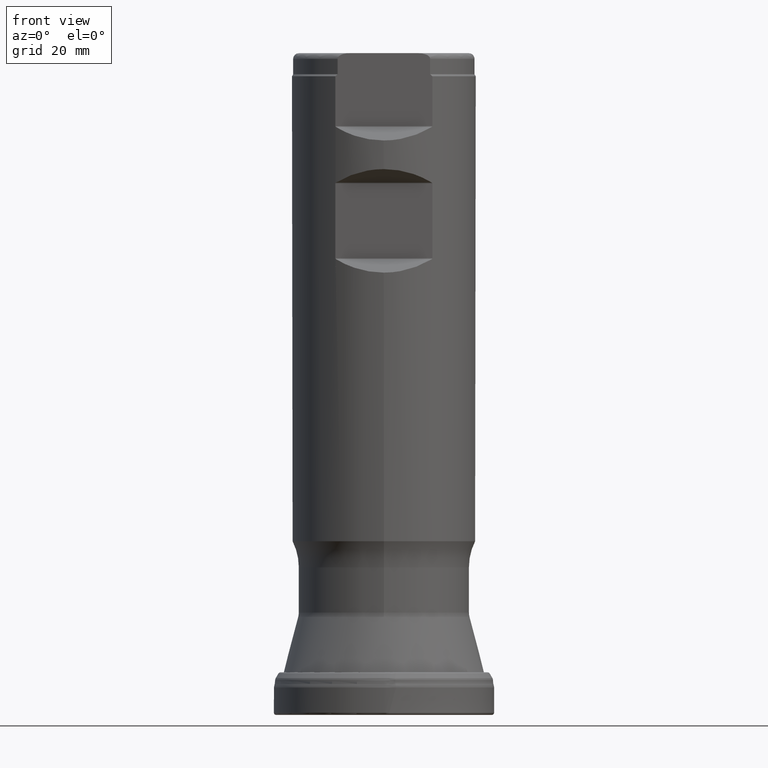
[diagram: clean part render]
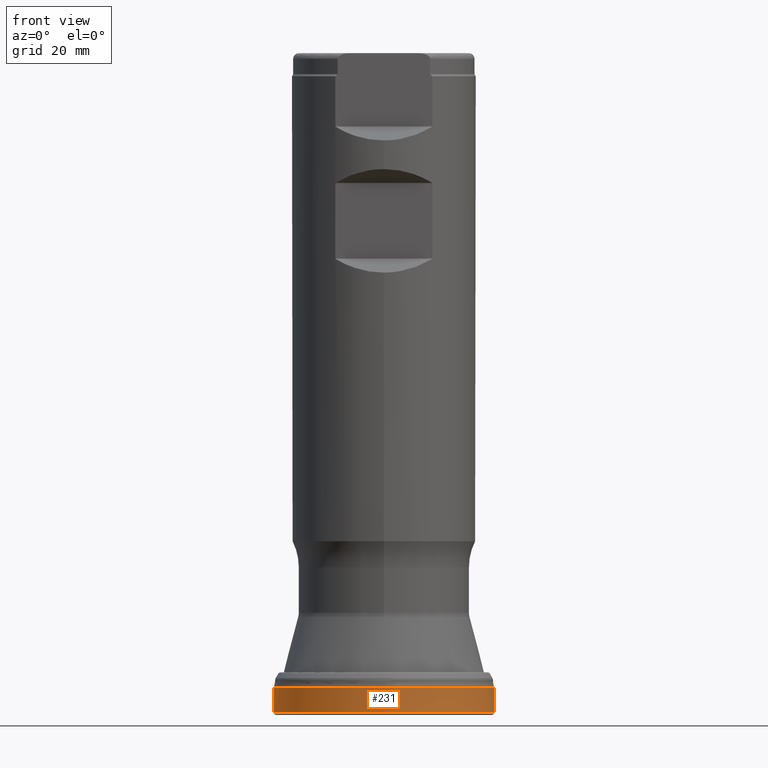
[diagram: same view with one face highlighted and labeled with its STEP entity id]
A machine part, front view. The second image highlights one B-rep face of the part: STEP entity #231.
In plain terms, the highlighted face is a SurfaceOfRevolution surface.
Its self-contained STEP definition (entity closure, byte-faithful):
#116=SURFACE_OF_REVOLUTION('',#801,#136);
#136=AXIS1_PLACEMENT('',#1608,#1058);
#231=ADVANCED_FACE('',(#352,#353),#116,.F.);
#281=CIRCLE('',#877,19.0499999619467);
#282=CIRCLE('',#878,19.0499998175294);
#352=FACE_BOUND('',#442,.T.);
#353=FACE_BOUND('',#443,.T.);
#442=EDGE_LOOP('',(#619));
#443=EDGE_LOOP('',(#620));
#619=ORIENTED_EDGE('',*,*,#755,.T.);
#620=ORIENTED_EDGE('',*,*,#756,.F.);
#687=VERTEX_POINT('',#1581);
#688=VERTEX_POINT('',#1595);
#755=EDGE_CURVE('',#687,#687,#281,.T.);
#756=EDGE_CURVE('',#688,#688,#282,.T.);
#801=B_SPLINE_CURVE_WITH_KNOTS('',3,(#1596,#1597,#1598,#1599,#1600,#1601,
#1602,#1603,#1604,#1605,#1606,#1607),.UNSPECIFIED.,.F.,.F.,(4,1,1,1,1,1,
1,1,1,4),(0.,0.221418157861957,0.365983083750147,0.510548009638337,0.655112935526528,
0.799677861414718,0.871960324358813,0.90810155583086,0.944242787302908,
1.),.UNSPECIFIED.);
#877=AXIS2_PLACEMENT_3D('',#1580,#1053,#1054);
#878=AXIS2_PLACEMENT_3D('',#1594,#1056,#1057);
#1053=DIRECTION('',(0.,1.17145536458252E-15,1.));
#1054=DIRECTION('',(0.,-1.,1.17241809962287E-15));
#1056=DIRECTION('',(0.,1.17145536458252E-15,1.));
#1057=DIRECTION('',(0.,-1.,1.18380080859356E-15));
#1058=DIRECTION('',(0.,1.17145536458252E-15,1.));
#1580=CARTESIAN_POINT('',(0.,4.5685732294722E-16,0.389991233776143));
#1581=CARTESIAN_POINT('',(0.,-19.0499999619467,0.389991233776165));
#1594=CARTESIAN_POINT('',(0.,5.5112619407133E-15,4.70462819782926));
#1595=CARTESIAN_POINT('',(0.,-19.0499998175294,4.70462819782928));
#1596=CARTESIAN_POINT('',(18.9632892823778,-1.8155328674677,4.70462793984546));
#1597=CARTESIAN_POINT('',(18.9647607216455,-1.90081503841667,4.38634500719714));
#1598=CARTESIAN_POINT('',(18.9634116688144,-2.04178510973329,3.86023664262779));
#1599=CARTESIAN_POINT('',(18.9491169293843,-2.23840300863843,3.12647451226594));
#1600=CARTESIAN_POINT('',(18.9282331894436,-2.4053713161252,2.50338136065094));
#1601=CARTESIAN_POINT('',(18.8997213493052,-2.57226956850283,1.88056631840897));
#1602=CARTESIAN_POINT('',(18.8724765765966,-2.71122892258865,1.36169080098696));
#1603=CARTESIAN_POINT('',(18.8522347613065,-2.80874868595928,0.998603279412067));
#1604=CARTESIAN_POINT('',(18.8403728344468,-2.86397847753352,0.79103193090857));
#1605=CARTESIAN_POINT('',(18.8293522138123,-2.9145375778137,0.607455353660357));
#1606=CARTESIAN_POINT('',(18.8239958413989,-2.9344856546909,0.472213763827122));
#1607=CARTESIAN_POINT('',(18.8208758810147,-2.94569679729784,0.389991233776146));
#1608=CARTESIAN_POINT('',(0.,0.,0.));